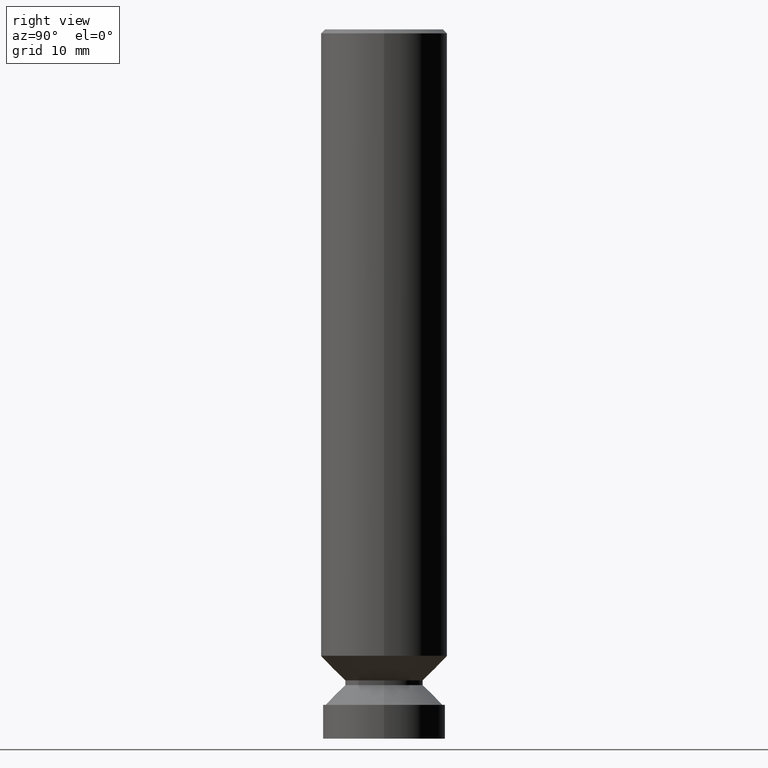
[diagram: clean part render]
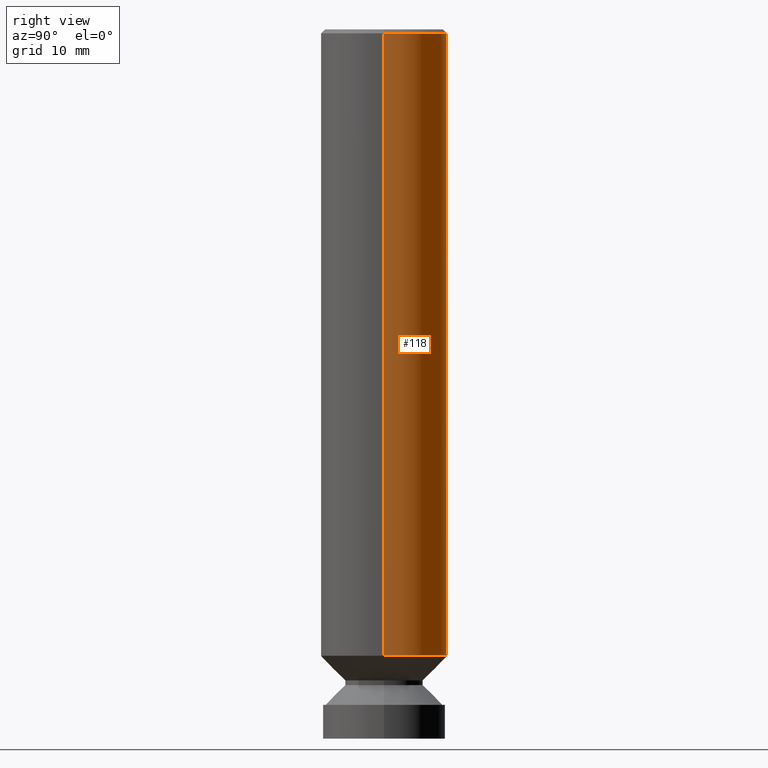
[diagram: same view with one face highlighted and labeled with its STEP entity id]
A machine part, right view. The second image highlights one B-rep face of the part: STEP entity #118.
In plain terms, the highlighted cylindrical surface (partial cylindrical patch) has radius 7.9375 mm, axis along (-0, 0, 1).
Its self-contained STEP definition (entity closure, byte-faithful):
#29 = DIRECTION ( 'NONE',  ( 1.000000000000000000, -6.982962677686265133E-15, 0.000000000000000000 ) ) ;
#39 = CARTESIAN_POINT ( 'NONE',  ( 0.000000000000000000, 0.000000000000000000, 0.000000000000000000 ) ) ;
#44 = VERTEX_POINT ( 'NONE', #452 ) ;
#46 = VERTEX_POINT ( 'NONE', #212 ) ;
#56 = EDGE_LOOP ( 'NONE', ( #399, #414, #221, #661 ) ) ;
#99 = CARTESIAN_POINT ( 'NONE',  ( -0.3125000000000000000, 2.112346210000095049E-15, -0.02000000000000009756 ) ) ;
#116 = DIRECTION ( 'NONE',  ( 1.000000000000000000, -6.982962677686266711E-15, 4.876176775795935232E-29 ) ) ;
#118 = ADVANCED_FACE ( 'NONE', ( #664 ), #236, .T. ) ;
#127 = CIRCLE ( 'NONE', #649, 0.3125000000000003331 ) ;
#152 = DIRECTION ( 'NONE',  ( -2.445468806185136877E-29, 3.491481338843145188E-15, 1.000000000000000000 ) ) ;
#191 = DIRECTION ( 'NONE',  ( 1.000000000000000000, -6.982962677686268288E-15, 0.000000000000000000 ) ) ;
#194 = EDGE_CURVE ( 'NONE', #46, #707, #516, .T. ) ;
#210 = CARTESIAN_POINT ( 'NONE',  ( -0.3125000000000001665, 2.220446049250314264E-15, -1.537167215704658792E-29 ) ) ;
#212 = CARTESIAN_POINT ( 'NONE',  ( -0.3125000000000003331, -3.210464772715377996E-15, -3.090949362120981370 ) ) ;
#221 = ORIENTED_EDGE ( 'NONE', *, *, #253, .F. ) ;
#232 = CIRCLE ( 'NONE', #298, 0.3125000000000000000 ) ;
#236 = CYLINDRICAL_SURFACE ( 'NONE', #536, 0.3125000000000001665 ) ;
#253 = EDGE_CURVE ( 'NONE', #44, #707, #232, .T. ) ;
#260 = LINE ( 'NONE', #441, #787 ) ;
#298 = AXIS2_PLACEMENT_3D ( 'NONE', #330, #383, #29 ) ;
#299 = EDGE_CURVE ( 'NONE', #648, #46, #127, .T. ) ;
#330 = CARTESIAN_POINT ( 'NONE',  ( 4.890937612370297681E-31, -6.982962677686324889E-17, -0.02000000000000009756 ) ) ;
#349 = DIRECTION ( 'NONE',  ( -2.445468806185136597E-29, 3.491481338843145583E-15, 1.000000000000000000 ) ) ;
#383 = DIRECTION ( 'NONE',  ( -2.445468806185136597E-29, 3.491481338843145583E-15, 1.000000000000000000 ) ) ;
#399 = ORIENTED_EDGE ( 'NONE', *, *, #299, .T. ) ;
#414 = ORIENTED_EDGE ( 'NONE', *, *, #194, .T. ) ;
#424 = DIRECTION ( 'NONE',  ( -2.445468806185136597E-29, 3.491481338843145583E-15, 1.000000000000000000 ) ) ;
#441 = CARTESIAN_POINT ( 'NONE',  ( 0.3125000000000001665, -2.182175836776959530E-15, 1.523805242436230636E-29 ) ) ;
#452 = CARTESIAN_POINT ( 'NONE',  ( 0.3125000000000000000, -2.213735251080466911E-15, -0.02000000000000009756 ) ) ;
#516 = LINE ( 'NONE', #210, #581 ) ;
#536 = AXIS2_PLACEMENT_3D ( 'NONE', #39, #349, #116 ) ;
#574 = DIRECTION ( 'NONE',  ( -2.445468806185136877E-29, 3.491481338843145188E-15, 1.000000000000000000 ) ) ;
#581 = VECTOR ( 'NONE', #574, 39.37007874015748143 ) ;
#632 = CARTESIAN_POINT ( 'NONE',  ( 7.558820246564705853E-29, -1.079199201715452990E-14, -3.090949362120981370 ) ) ;
#643 = EDGE_CURVE ( 'NONE', #648, #44, #260, .T. ) ;
#648 = VERTEX_POINT ( 'NONE', #758 ) ;
#649 = AXIS2_PLACEMENT_3D ( 'NONE', #632, #424, #191 ) ;
#661 = ORIENTED_EDGE ( 'NONE', *, *, #643, .F. ) ;
#664 = FACE_OUTER_BOUND ( 'NONE', #56, .T. ) ;
#707 = VERTEX_POINT ( 'NONE', #99 ) ;
#758 = CARTESIAN_POINT ( 'NONE',  ( 0.3125000000000003331, -1.297416785393149140E-14, -3.090949362120981370 ) ) ;
#787 = VECTOR ( 'NONE', #152, 39.37007874015748143 ) ;